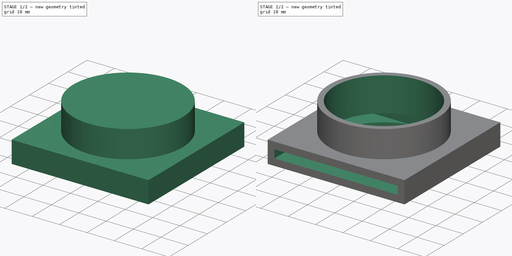
[diagram: build sequence overview — one tinted view per stage of 2, left to right]
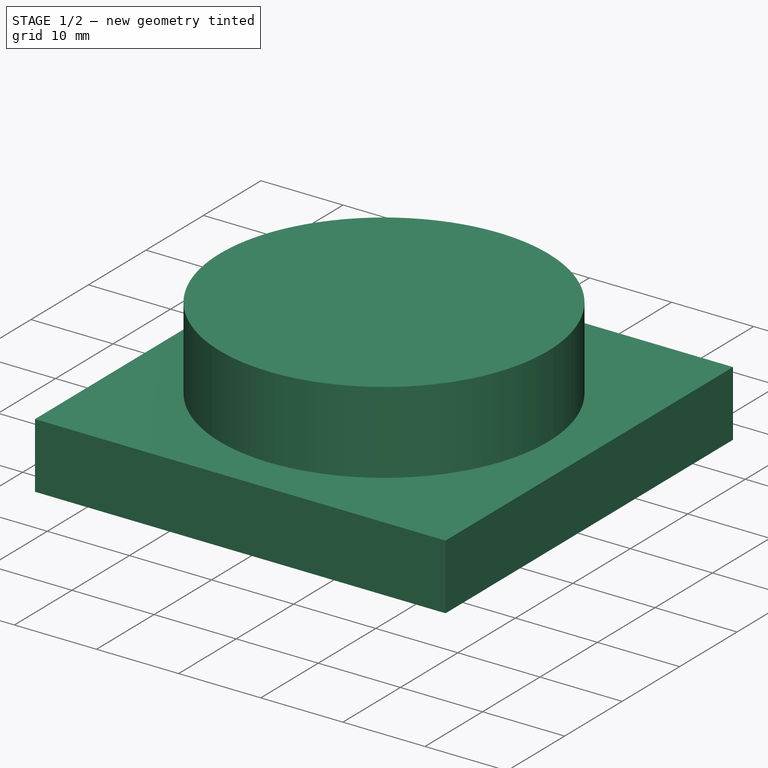
[diagram: stage 1 of 2 — iso view after this stage's code; geometry added in this stage tinted green]
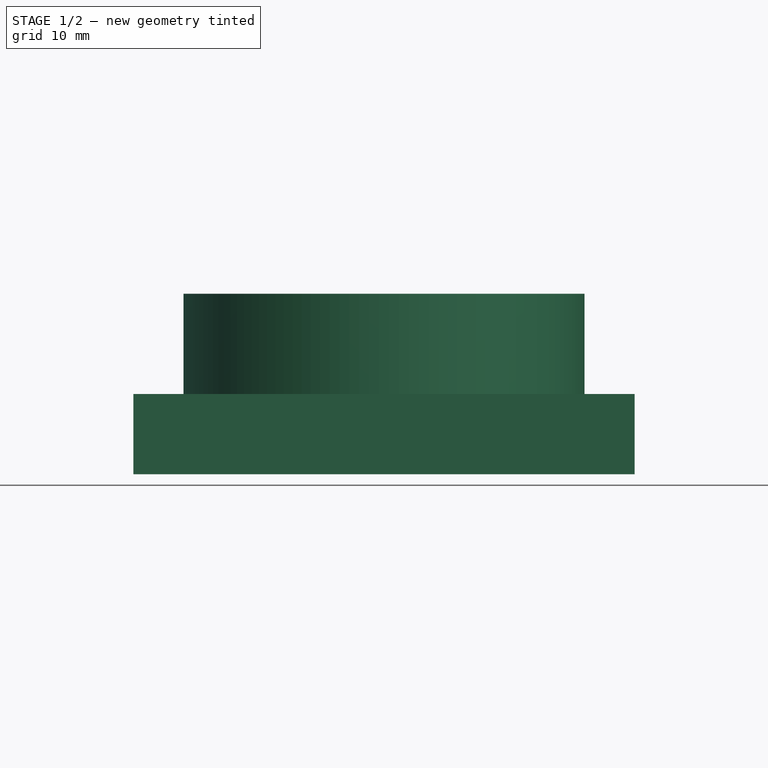
[diagram: stage 1 of 2 — front view after this stage's code; geometry added in this stage tinted green]
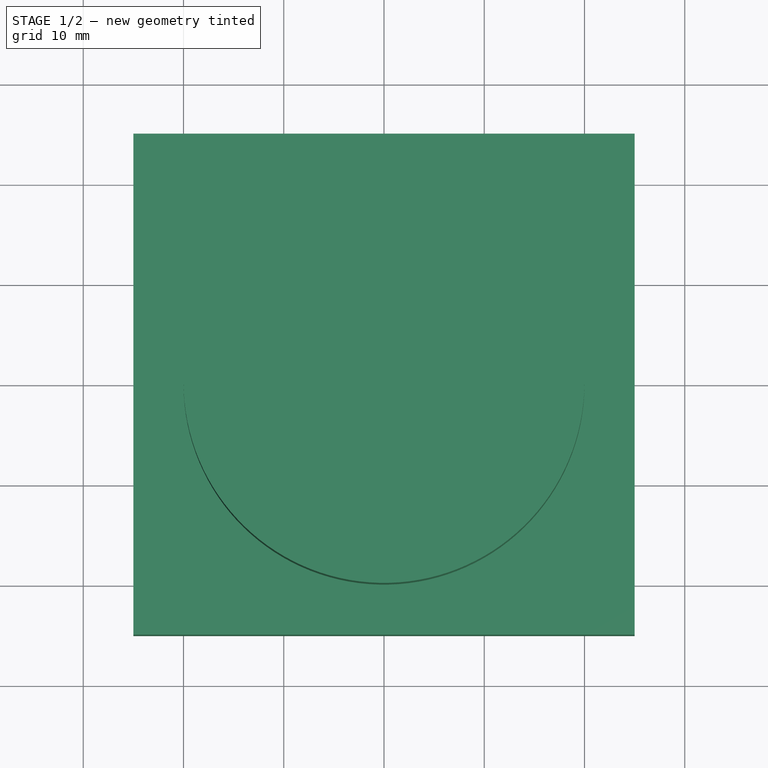
[diagram: stage 1 of 2 — top view after this stage's code; geometry added in this stage tinted green]
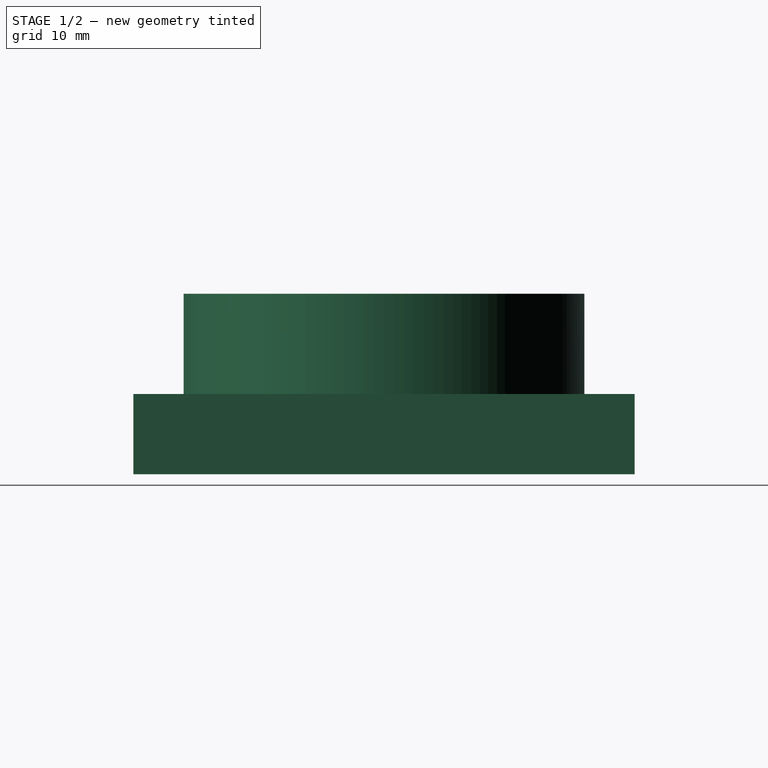
[diagram: stage 1 of 2 — right view after this stage's code; geometry added in this stage tinted green]
FCSTD DOCUMENT  (FreeCAD 0.16R6705 (Git))
Label: struttura
License: All rights reserved
LicenseURL: http://it.wikipedia.org/wiki/<copyright redacted>
objects: Sketcher::SketchObject×4, PartDesign::Pad×2, PartDesign::Pocket×2
note: 12 computed .brp shape members not serialized (recipe doc carries the construction recipe); baked Part::Feature solids carry a one-line shape summary decoded from their .brp

FEATURE [Sketcher::SketchObject] Sketch
  sketch-geometry (4):
    g0: LineSegment StartX=-25 StartY=25 StartZ=0 EndX=25 EndY=25 EndZ=0
    g1: LineSegment StartX=25 StartY=25 StartZ=0 EndX=25 EndY=-25 EndZ=0
    g2: LineSegment StartX=25 StartY=-25 StartZ=0 EndX=-25 EndY=-25 EndZ=0
    g3: LineSegment StartX=-25 StartY=-25 StartZ=0 EndX=-25 EndY=25 EndZ=0
  constraints (12):
    c: Coincident(g0,g1)
    c: Coincident(g1,g2)
    c: Coincident(g2,g3)
    c: Coincident(g3,g0)
    c: Horizontal(g0)
    c: Horizontal(g2)
    c: Vertical(g1)
    c: Vertical(g3)
    c: DistanceY(g2,g0) = 50
    c: Equal(g3,g0)
    c: Symmetric(g0,g2,g-1)
    c: Symmetric(g0,g0,g-2)
FEATURE [PartDesign::Pad] Pad
  Length = 8
  Length2 = 100
  Sketch = -> Sketch
  Type = 0
FEATURE [Sketcher::SketchObject] Sketch001
  Placement = pos=(0,0,8) rot=(0,0,1;0rad)
  Support = -> Pad [Face6]
  sketch-geometry (1):
    g0: Circle CenterX=0 CenterY=0 CenterZ=0 NormalX=0 NormalY=0 NormalZ=1 Radius=20
  constraints (1):
    c: Radius(g0) = 20
FEATURE [PartDesign::Pad] Pad001
  Length = 10
  Length2 = 100
  Sketch = -> Sketch001
  Type = 0
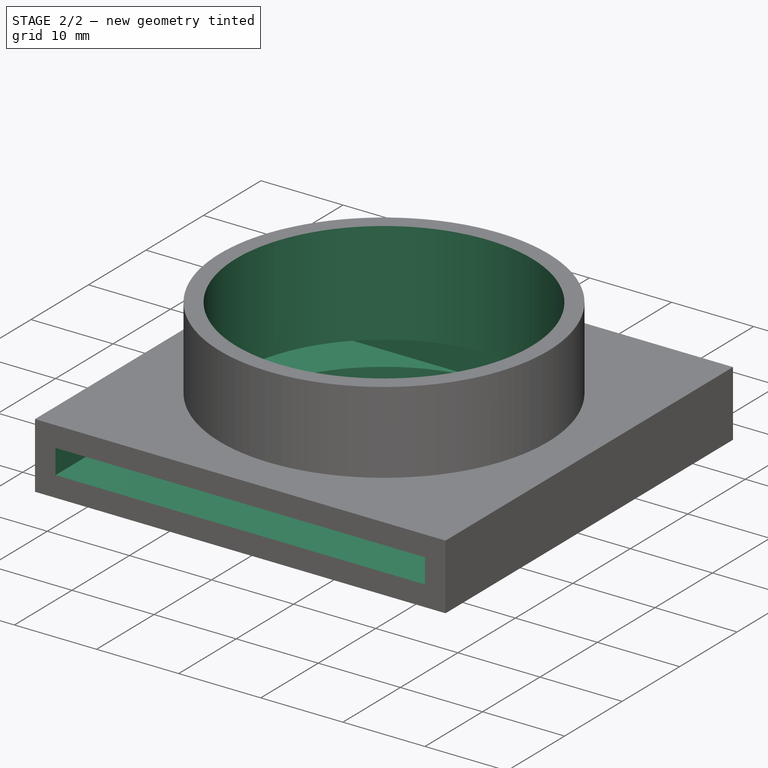
[diagram: stage 2 of 2 — iso view after this stage's code; geometry added in this stage tinted green]
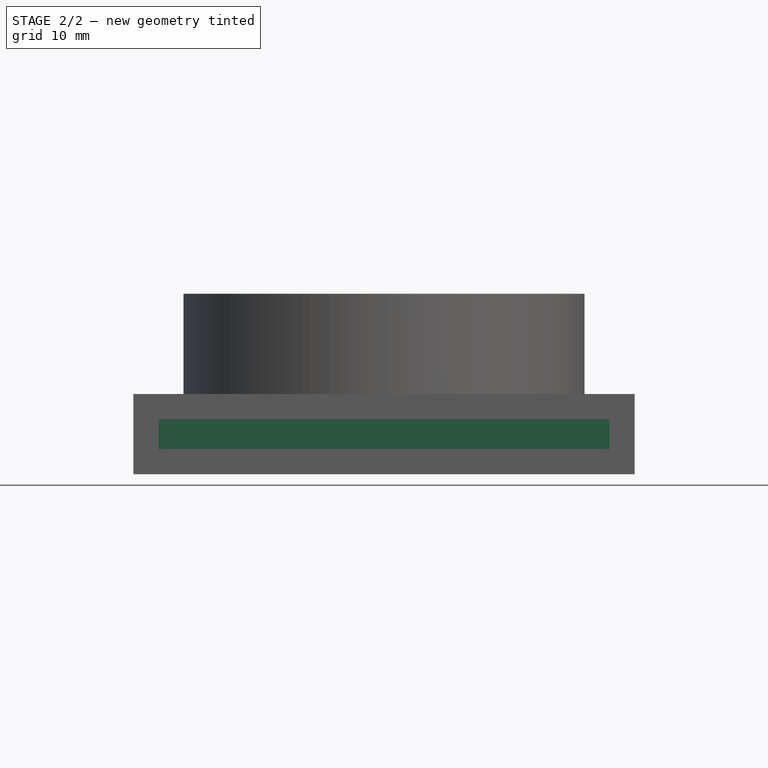
[diagram: stage 2 of 2 — front view after this stage's code; geometry added in this stage tinted green]
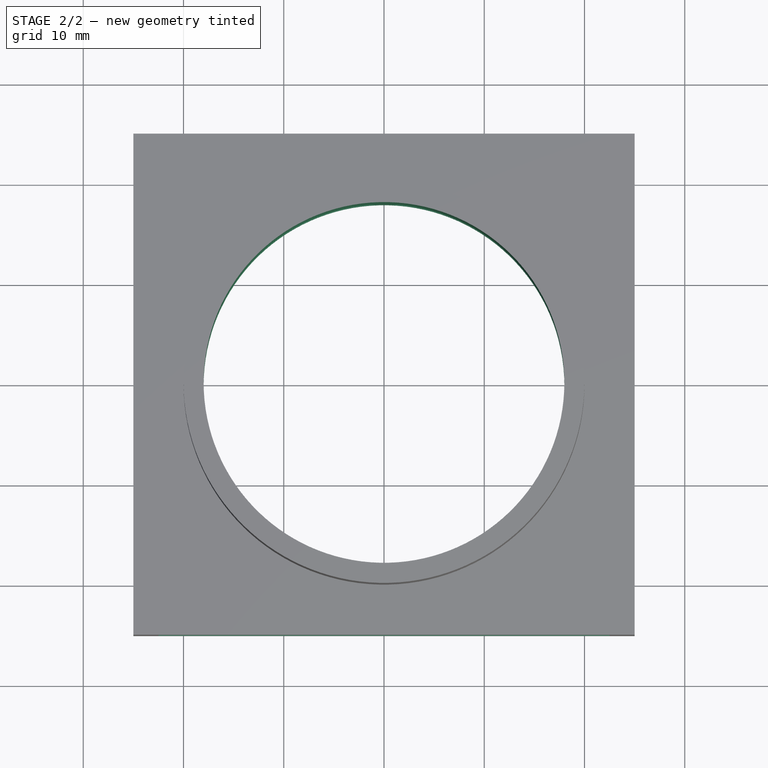
[diagram: stage 2 of 2 — top view after this stage's code; geometry added in this stage tinted green]
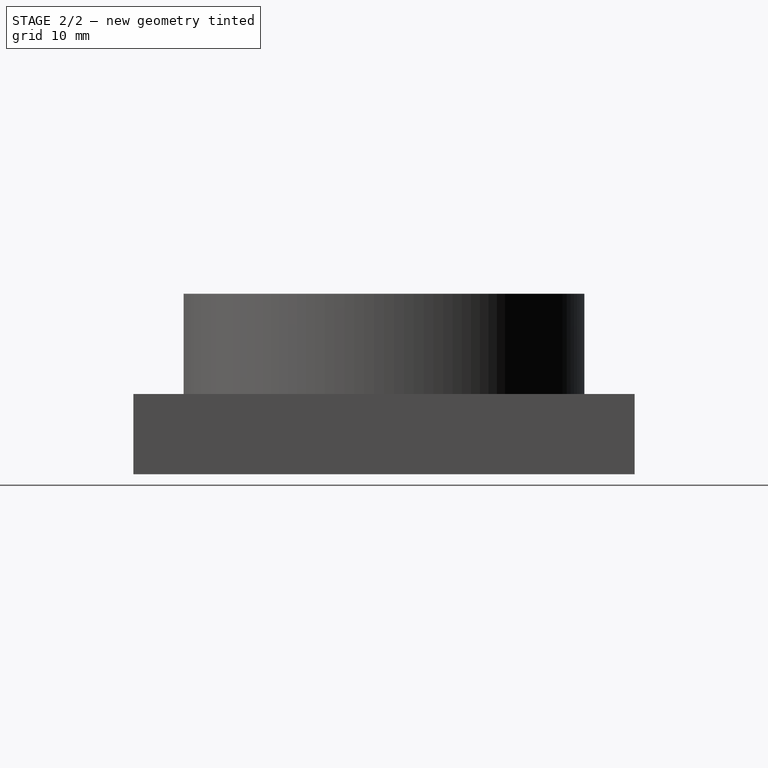
[diagram: stage 2 of 2 — right view after this stage's code; geometry added in this stage tinted green]
FEATURE [Sketcher::SketchObject] Sketch002
  Placement = pos=(0,0,18) rot=(0,0,1;0rad)
  Support = -> Pad001 [Face8]
  sketch-geometry (1):
    g0: Circle CenterX=0 CenterY=0 CenterZ=0 NormalX=0 NormalY=0 NormalZ=1 Radius=17.9944
FEATURE [PartDesign::Pocket] Pocket
  Length = 5
  Sketch = -> Sketch002
  Type = 1
FEATURE [Sketcher::SketchObject] Sketch003
  ExternalGeometry = -> [Pocket]
  Placement = pos=(0,-25,0) rot=(1,0,0;1.5708rad)
  Support = -> Pocket [Face6]
  sketch-geometry (4):
    g0: LineSegment StartX=-22.5 StartY=5.5 StartZ=0 EndX=22.5 EndY=5.5 EndZ=0
    g1: LineSegment StartX=22.5 StartY=5.5 StartZ=0 EndX=22.5 EndY=2.5 EndZ=0
    g2: LineSegment StartX=22.5 StartY=2.5 StartZ=0 EndX=-22.5 EndY=2.5 EndZ=0
    g3: LineSegment StartX=-22.5 StartY=2.5 StartZ=0 EndX=-22.5 EndY=5.5 EndZ=0
  constraints (12):
    c: Coincident(g0,g1)
    c: Coincident(g1,g2)
    c: Coincident(g2,g3)
    c: Coincident(g3,g0)
    c: Horizontal(g0)
    c: Horizontal(g2)
    c: Vertical(g1)
    c: Vertical(g3)
    c: Symmetric(g0,g0,g-2)
    c: DistanceX(g0,g0) = 45
    c: DistanceY(g0,g-3) = 2.5
    c: DistanceY(g-4,g2) = 2.5
FEATURE [PartDesign::Pocket] Pocket001
  Length = 43
  Sketch = -> Sketch003
  Type = 0
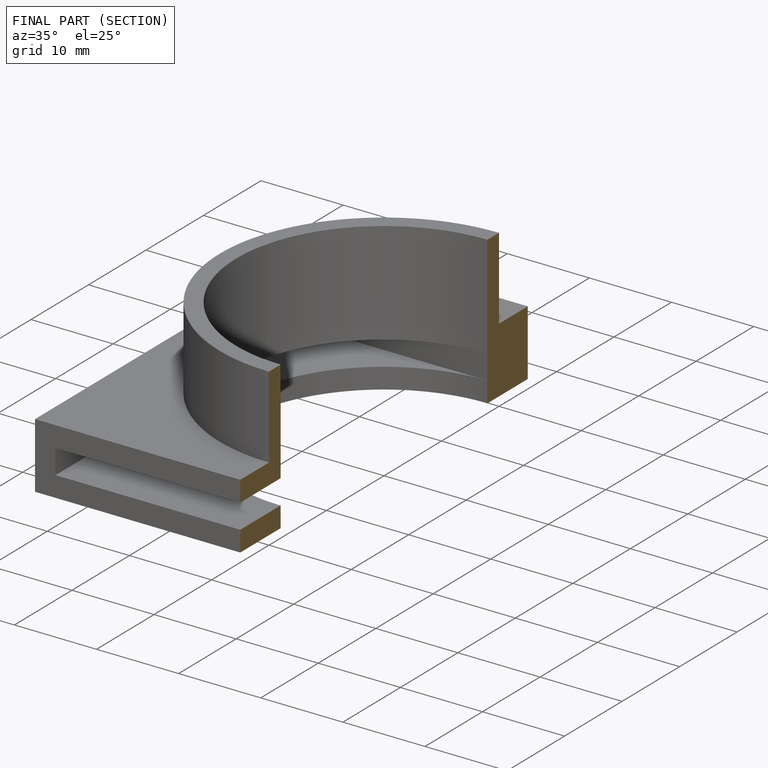
[diagram: finished part — half-section view (interior)]
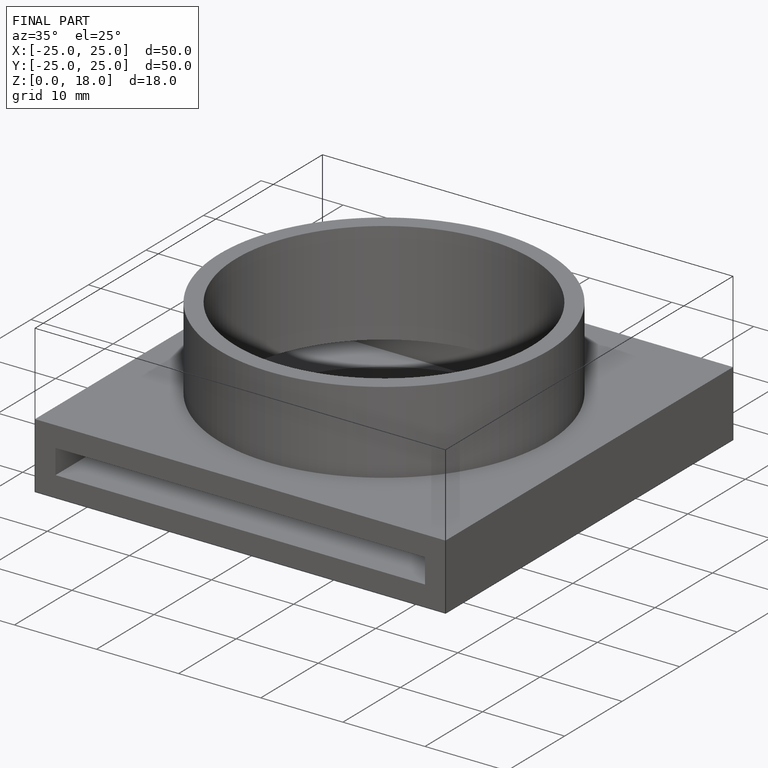
[diagram: finished part — iso view with bounding-box wireframe]
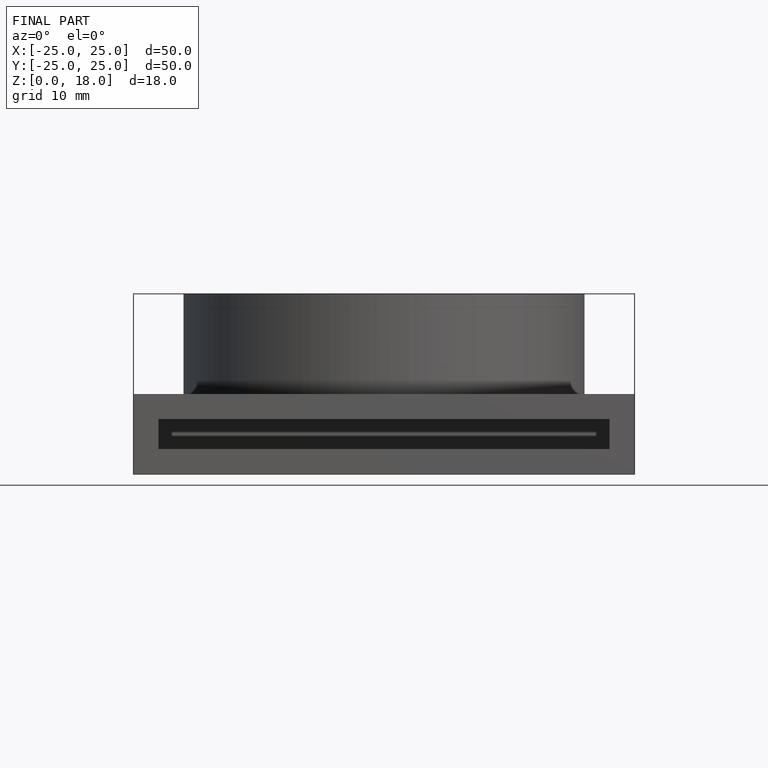
[diagram: finished part — front view with bounding-box wireframe]
